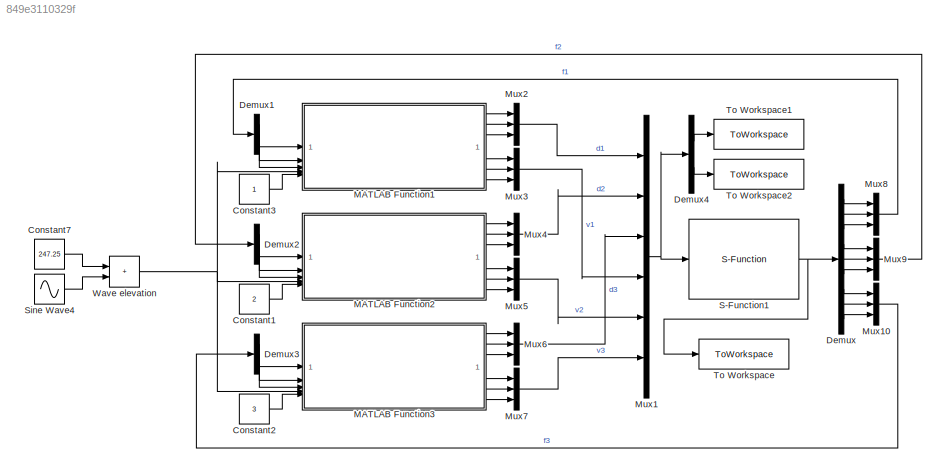
MODEL slx_849e3110329f
KIND model
CONFIG AbsTol = auto
CONFIG EnableMultiTasking = off
CONFIG FixedStep = dt
CONFIG MaxStep = auto
CONFIG MinStep = auto
CONFIG RelTol = 1e-3
CONFIG SampleTimeConstraint = Unconstrained
CONFIG SolverName = FixedStepAuto
CONFIG StartTime = 0.0
CONFIG StopTime = TMax
BLOCK [Constant] Constant1
  Value = 2
BLOCK [Constant] Constant2
  Value = 3
BLOCK [Constant] Constant3
BLOCK [Constant] Constant7
  Value = 247.25
BLOCK [Demux] Demux
  Outputs = 9
BLOCK [Demux] Demux1
  Outputs = 3
BLOCK [Demux] Demux2
  Outputs = 3
BLOCK [Demux] Demux3
  Outputs = 3
BLOCK [Demux] Demux4
  Outputs = [9 9]
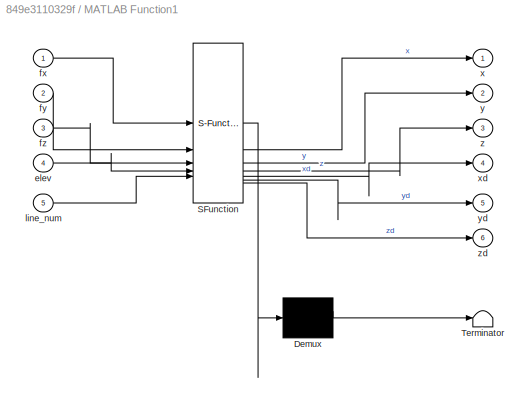
BLOCK [SubSystem] MATLAB Function1
  ErrorFcn = Stateflow.Translate.translate
  PermitHierarchicalResolution = ExplicitOnly
  SFBlockType = MATLAB Function
  TreatAsAtomicUnit = on
BLOCK [Demux] MATLAB Function1/ Demux 
  Outputs = 1
BLOCK [S-Function] MATLAB Function1/ SFunction 
  EnableBusSupport = on
  FunctionName = sf_sfun
  PortCounts = [5 7]
  SFcnIsStateOwnerBlock = off
  SFunctionDeploymentMode = off
  Tag = Stateflow S-Function 1
BLOCK [Terminator] MATLAB Function1/ Terminator 
BLOCK [Inport] MATLAB Function1/elev
  Port = 4
BLOCK [Inport] MATLAB Function1/fx
BLOCK [Inport] MATLAB Function1/fy
  Port = 2
BLOCK [Inport] MATLAB Function1/fz
  Port = 3
BLOCK [Inport] MATLAB Function1/line_num
  Port = 5
BLOCK [Outport] MATLAB Function1/x
BLOCK [Outport] MATLAB Function1/xd
  Port = 4
BLOCK [Outport] MATLAB Function1/y
  Port = 2
BLOCK [Outport] MATLAB Function1/yd
  Port = 5
BLOCK [Outport] MATLAB Function1/z
  Port = 3
BLOCK [Outport] MATLAB Function1/zd
  Port = 6
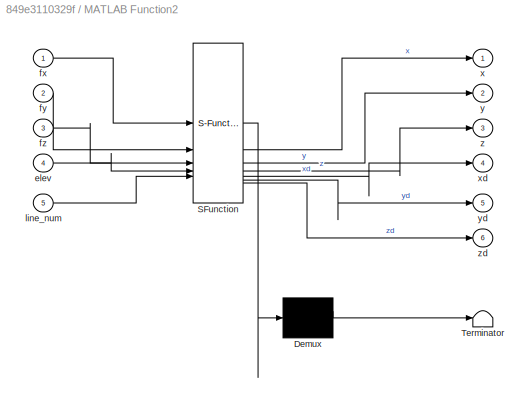
BLOCK [SubSystem] MATLAB Function2
  ErrorFcn = Stateflow.Translate.translate
  PermitHierarchicalResolution = ExplicitOnly
  SFBlockType = MATLAB Function
  TreatAsAtomicUnit = on
BLOCK [Demux] MATLAB Function2/ Demux 
  Outputs = 1
BLOCK [S-Function] MATLAB Function2/ SFunction 
  EnableBusSupport = on
  FunctionName = sf_sfun
  PortCounts = [5 7]
  SFcnIsStateOwnerBlock = off
  SFunctionDeploymentMode = off
  Tag = Stateflow S-Function 2
BLOCK [Terminator] MATLAB Function2/ Terminator 
BLOCK [Inport] MATLAB Function2/elev
  Port = 4
BLOCK [Inport] MATLAB Function2/fx
BLOCK [Inport] MATLAB Function2/fy
  Port = 2
BLOCK [Inport] MATLAB Function2/fz
  Port = 3
BLOCK [Inport] MATLAB Function2/line_num
  Port = 5
BLOCK [Outport] MATLAB Function2/x
BLOCK [Outport] MATLAB Function2/xd
  Port = 4
BLOCK [Outport] MATLAB Function2/y
  Port = 2
BLOCK [Outport] MATLAB Function2/yd
  Port = 5
BLOCK [Outport] MATLAB Function2/z
  Port = 3
BLOCK [Outport] MATLAB Function2/zd
  Port = 6
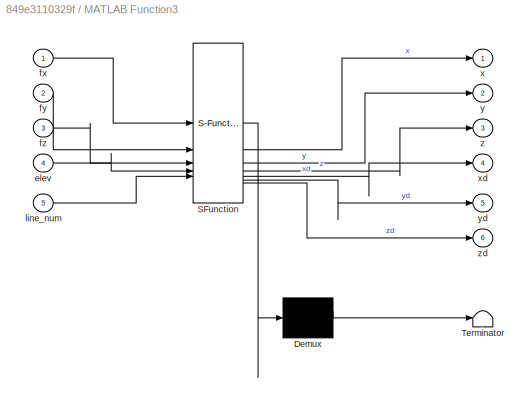
BLOCK [SubSystem] MATLAB Function3
  ErrorFcn = Stateflow.Translate.translate
  PermitHierarchicalResolution = ExplicitOnly
  SFBlockType = MATLAB Function
  TreatAsAtomicUnit = on
BLOCK [Demux] MATLAB Function3/ Demux 
  Outputs = 1
BLOCK [S-Function] MATLAB Function3/ SFunction 
  EnableBusSupport = on
  FunctionName = sf_sfun
  PortCounts = [5 7]
  SFcnIsStateOwnerBlock = off
  SFunctionDeploymentMode = off
  Tag = Stateflow S-Function 3
BLOCK [Terminator] MATLAB Function3/ Terminator 
BLOCK [Inport] MATLAB Function3/elev
  Port = 4
BLOCK [Inport] MATLAB Function3/fx
BLOCK [Inport] MATLAB Function3/fy
  Port = 2
BLOCK [Inport] MATLAB Function3/fz
  Port = 3
BLOCK [Inport] MATLAB Function3/line_num
  Port = 5
BLOCK [Outport] MATLAB Function3/x
BLOCK [Outport] MATLAB Function3/xd
  Port = 4
BLOCK [Outport] MATLAB Function3/y
  Port = 2
BLOCK [Outport] MATLAB Function3/yd
  Port = 5
BLOCK [Outport] MATLAB Function3/z
  Port = 3
BLOCK [Outport] MATLAB Function3/zd
  Port = 6
BLOCK [Mux] Mux1
  DisplayOption = bar
  Inputs = 6
BLOCK [Mux] Mux10
  DisplayOption = bar
  Inputs = 3
BLOCK [Mux] Mux2
  DisplayOption = bar
  Inputs = 3
BLOCK [Mux] Mux3
  DisplayOption = bar
  Inputs = 3
BLOCK [Mux] Mux4
  DisplayOption = bar
  Inputs = 3
BLOCK [Mux] Mux5
  DisplayOption = bar
  Inputs = 3
BLOCK [Mux] Mux6
  DisplayOption = bar
  Inputs = 3
BLOCK [Mux] Mux7
  DisplayOption = bar
  Inputs = 3
BLOCK [Mux] Mux8
  DisplayOption = bar
  Inputs = 3
BLOCK [Mux] Mux9
  DisplayOption = bar
  Inputs = 3
BLOCK [S-Function] S-Function1
  EnableBusSupport = off
  FunctionName = MoorDyn_SFunc_3DOF
  Parameters = MD_InputFileName, dt, TMax
  SFcnIsStateOwnerBlock = off
  SFunctionDeploymentMode = off
BLOCK [Sin] Sine Wave4
  Amplitude = 0.5
  Frequency = 0.7330386
  SampleTime = 0
BLOCK [ToWorkspace] To Workspace
  FixptAsFi = on
  MaxDataPoints = inf
  SampleTime = -1
  SaveFormat = Timeseries
  VariableName = trialForce
BLOCK [ToWorkspace] To Workspace1
  FixptAsFi = on
  MaxDataPoints = inf
  SampleTime = -1
  SaveFormat = Timeseries
  VariableName = daqDisp
BLOCK [ToWorkspace] To Workspace2
  FixptAsFi = on
  MaxDataPoints = inf
  SampleTime = -1
  SaveFormat = Timeseries
  VariableName = daqVel
BLOCK [Sum] Wave elevation
  IconShape = rectangular
LINE Constant1:1 -> MATLAB Function2:5
LINE Constant2:1 -> MATLAB Function3:5
LINE Constant3:1 -> MATLAB Function1:5
LINE Constant7:1 -> Wave elevation:1
LINE Demux1:1 -> MATLAB Function1:1
LINE Demux1:2 -> MATLAB Function1:2
LINE Demux1:3 -> MATLAB Function1:3
LINE Demux2:1 -> MATLAB Function2:1
LINE Demux2:2 -> MATLAB Function2:2
LINE Demux2:3 -> MATLAB Function2:3
LINE Demux3:1 -> MATLAB Function3:1
LINE Demux3:2 -> MATLAB Function3:2
LINE Demux3:3 -> MATLAB Function3:3
LINE Demux4:1 -> To Workspace1:1
LINE Demux4:2 -> To Workspace2:1
LINE Demux:1 -> Mux8:1
LINE Demux:2 -> Mux8:2
LINE Demux:3 -> Mux8:3
LINE Demux:4 -> Mux9:1
LINE Demux:5 -> Mux9:2
LINE Demux:6 -> Mux9:3
LINE Demux:7 -> Mux10:1
LINE Demux:8 -> Mux10:2
LINE Demux:9 -> Mux10:3
LINE MATLAB Function1:1 -> Mux2:1
LINE MATLAB Function1:2 -> Mux2:2
LINE MATLAB Function1:3 -> Mux2:3
LINE MATLAB Function1:4 -> Mux3:1
LINE MATLAB Function1:5 -> Mux3:2
LINE MATLAB Function1:6 -> Mux3:3
LINE MATLAB Function2:1 -> Mux4:1
LINE MATLAB Function2:2 -> Mux4:2
LINE MATLAB Function2:3 -> Mux4:3
LINE MATLAB Function2:4 -> Mux5:1
LINE MATLAB Function2:5 -> Mux5:2
LINE MATLAB Function2:6 -> Mux5:3
LINE MATLAB Function3:1 -> Mux6:1
LINE MATLAB Function3:2 -> Mux6:2
LINE MATLAB Function3:3 -> Mux6:3
LINE MATLAB Function3:4 -> Mux7:1
LINE MATLAB Function3:5 -> Mux7:2
LINE MATLAB Function3:6 -> Mux7:3
LINE Mux10:1 -> Demux3:1
NET Mux1:1 -> Demux4:1, S-Function1:1
LINE Mux2:1 -> Mux1:1
LINE Mux3:1 -> Mux1:4
LINE Mux4:1 -> Mux1:2
LINE Mux5:1 -> Mux1:5
LINE Mux6:1 -> Mux1:3
LINE Mux7:1 -> Mux1:6
LINE Mux8:1 -> Demux1:1
LINE Mux9:1 -> Demux2:1
NET S-Function1:1 -> Demux:1, To Workspace:1
LINE Sine Wave4:1 -> Wave elevation:2
NET Wave elevation:1 -> MATLAB Function1:4, MATLAB Function2:4, MATLAB Function3:4
note: NET lines group one-source signal fan-out (src -> all destinations, sorted); 1:1 wires keep LINE
CHART MATLAB Function1 states=1 transitions=1
  STATE_LABEL 'eML_blk_kernel()'
  STATE_LABEL "SCRIPT:\nfunction [x, y, z, xd, yd, zd]  = SurrogateModel(fx, fy, fz, elev, line_num)\n    \n    % preallocate outputs\n    x = double(0);\n    y = double(0);\n    z = double(0);\n    xd = double(0);\n    yd = double(0);\n    zd = double(0);\n\n    % declare python functions and inputs\n    coder.extrinsic('py.list')\n    coder.extrinsic('py.predict_motions.predict_motions');\n    inputs = py.list({fx, fy, fz, ...<+1669ch>"
CHART MATLAB Function2 states=1 transitions=1
  STATE_LABEL 'eML_blk_kernel()'
  STATE_LABEL "SCRIPT:\nfunction [x, y, z, xd, yd, zd]  = SurrogateModel(fx, fy, fz, elev, line_num)\n    \n    % preallocate outputs\n    x = double(0);\n    y = double(0);\n    z = double(0);\n    xd = double(0);\n    yd = double(0);\n    zd = double(0);\n\n    % declare python functions and inputs\n    coder.extrinsic('py.list')\n    coder.extrinsic('py.predict_motions.predict_motions');\n    inputs = py.list({fx, fy, fz, ...<+1675ch>"
CHART MATLAB Function3 states=1 transitions=1
  STATE_LABEL 'eML_blk_kernel()'
  STATE_LABEL "SCRIPT:\nfunction [x, y, z, xd, yd, zd]  = SurrogateModel(fx, fy, fz, elev, line_num)\n    \n    % preallocate outputs\n    x = double(0);\n    y = double(0);\n    z = double(0);\n    xd = double(0);\n    yd = double(0);\n    zd = double(0);\n\n    % declare python functions and inputs\n    coder.extrinsic('py.list')\n    coder.extrinsic('py.predict_motions.predict_motions');\n    inputs = py.list({fx, fy, fz, ...<+1665ch>"
CHART  states=0 transitions=0
CHART  states=0 transitions=0
CHART  states=0 transitions=0
